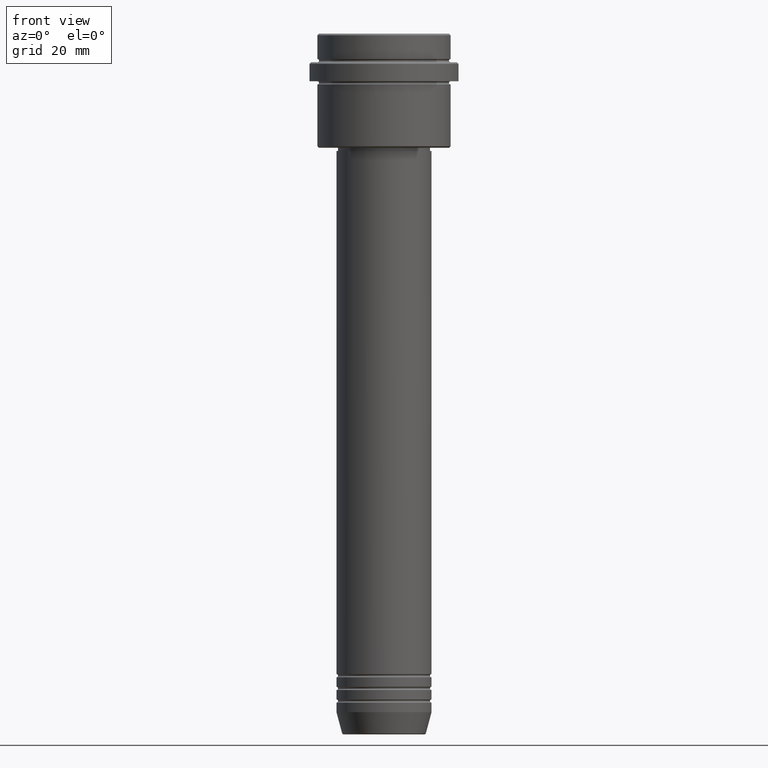
[diagram: clean part render]
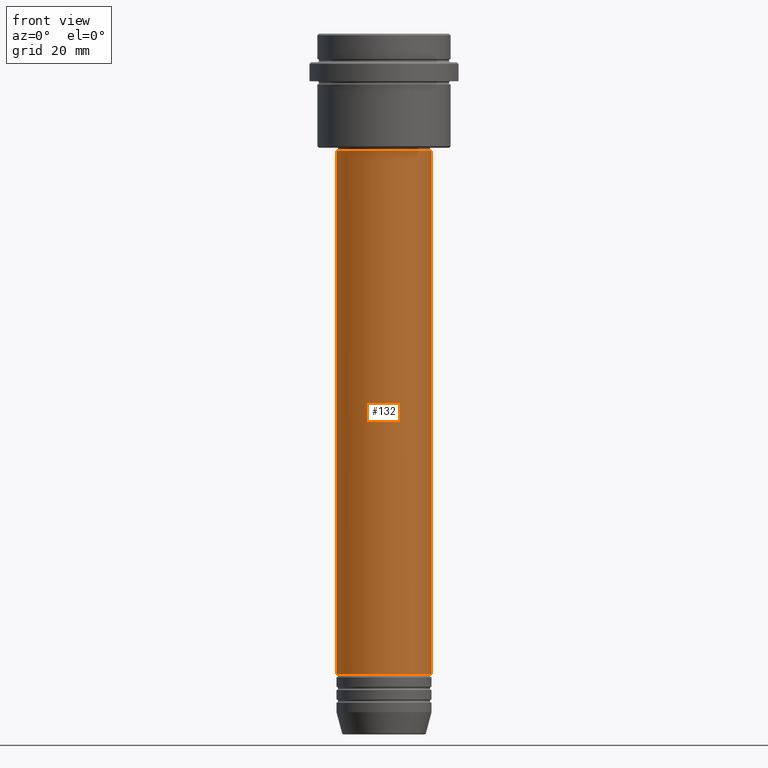
[diagram: same view with one face highlighted and labeled with its STEP entity id]
A machine part, front view. The second image highlights one B-rep face of the part: STEP entity #132.
In plain terms, the highlighted cylindrical surface (partial cylindrical patch) has radius 15 mm, axis along (-0, -0, 1).
Its self-contained STEP definition (entity closure, byte-faithful):
#29 = CARTESIAN_POINT ( 'NONE',  ( 15.00000000000000000, 0.000000000000000000, 0.000000000000000000 ) ) ;
#73 = CARTESIAN_POINT ( 'NONE',  ( 15.00000000000000000, 0.000000000000000000, -37.00000000000000711 ) ) ;
#87 = DIRECTION ( 'NONE',  ( -0.000000000000000000, -0.000000000000000000, 1.000000000000000000 ) ) ;
#95 = CIRCLE ( 'NONE', #371, 15.00000000000000000 ) ;
#122 = CYLINDRICAL_SURFACE ( 'NONE', #947, 15.00000000000000000 ) ;
#132 = ADVANCED_FACE ( 'NONE', ( #1113 ), #122, .T. ) ;
#153 = CARTESIAN_POINT ( 'NONE',  ( -15.00000000000000000, 1.836970198721029589E-15, -37.00000000000000711 ) ) ;
#162 = CARTESIAN_POINT ( 'NONE',  ( -15.00000000000000000, 1.836970198721029589E-15, -201.9999999999999147 ) ) ;
#190 = EDGE_LOOP ( 'NONE', ( #273, #968, #280, #1147 ) ) ;
#240 = DIRECTION ( 'NONE',  ( -0.000000000000000000, -0.000000000000000000, 1.000000000000000000 ) ) ;
#273 = ORIENTED_EDGE ( 'NONE', *, *, #1202, .F. ) ;
#280 = ORIENTED_EDGE ( 'NONE', *, *, #339, .T. ) ;
#286 = LINE ( 'NONE', #730, #555 ) ;
#307 = VERTEX_POINT ( 'NONE', #153 ) ;
#336 = DIRECTION ( 'NONE',  ( 1.000000000000000000, 0.000000000000000000, 0.000000000000000000 ) ) ;
#339 = EDGE_CURVE ( 'NONE', #527, #722, #1007, .T. ) ;
#371 = AXIS2_PLACEMENT_3D ( 'NONE', #748, #87, #1089 ) ;
#439 = DIRECTION ( 'NONE',  ( -0.000000000000000000, -0.000000000000000000, 1.000000000000000000 ) ) ;
#475 = VECTOR ( 'NONE', #240, 1000.000000000000000 ) ;
#527 = VERTEX_POINT ( 'NONE', #1221 ) ;
#533 = DIRECTION ( 'NONE',  ( -0.000000000000000000, -0.000000000000000000, 1.000000000000000000 ) ) ;
#555 = VECTOR ( 'NONE', #928, 1000.000000000000000 ) ;
#651 = VERTEX_POINT ( 'NONE', #162 ) ;
#722 = VERTEX_POINT ( 'NONE', #73 ) ;
#730 = CARTESIAN_POINT ( 'NONE',  ( -15.00000000000000000, 1.836970198721029589E-15, 0.000000000000000000 ) ) ;
#748 = CARTESIAN_POINT ( 'NONE',  ( 0.000000000000000000, 0.000000000000000000, -201.9999999999999147 ) ) ;
#763 = CIRCLE ( 'NONE', #1277, 15.00000000000000000 ) ;
#813 = EDGE_CURVE ( 'NONE', #307, #722, #763, .T. ) ;
#877 = EDGE_CURVE ( 'NONE', #651, #527, #95, .T. ) ;
#928 = DIRECTION ( 'NONE',  ( -0.000000000000000000, -0.000000000000000000, 1.000000000000000000 ) ) ;
#947 = AXIS2_PLACEMENT_3D ( 'NONE', #1230, #439, #336 ) ;
#968 = ORIENTED_EDGE ( 'NONE', *, *, #877, .T. ) ;
#1007 = LINE ( 'NONE', #29, #475 ) ;
#1075 = DIRECTION ( 'NONE',  ( 1.000000000000000000, 0.000000000000000000, 0.000000000000000000 ) ) ;
#1089 = DIRECTION ( 'NONE',  ( 1.000000000000000000, 0.000000000000000000, 0.000000000000000000 ) ) ;
#1113 = FACE_OUTER_BOUND ( 'NONE', #190, .T. ) ;
#1147 = ORIENTED_EDGE ( 'NONE', *, *, #813, .F. ) ;
#1202 = EDGE_CURVE ( 'NONE', #651, #307, #286, .T. ) ;
#1221 = CARTESIAN_POINT ( 'NONE',  ( 15.00000000000000000, 0.000000000000000000, -201.9999999999999147 ) ) ;
#1230 = CARTESIAN_POINT ( 'NONE',  ( 0.000000000000000000, 0.000000000000000000, 0.000000000000000000 ) ) ;
#1277 = AXIS2_PLACEMENT_3D ( 'NONE', #1417, #533, #1075 ) ;
#1417 = CARTESIAN_POINT ( 'NONE',  ( 0.000000000000000000, 0.000000000000000000, -37.00000000000000711 ) ) ;